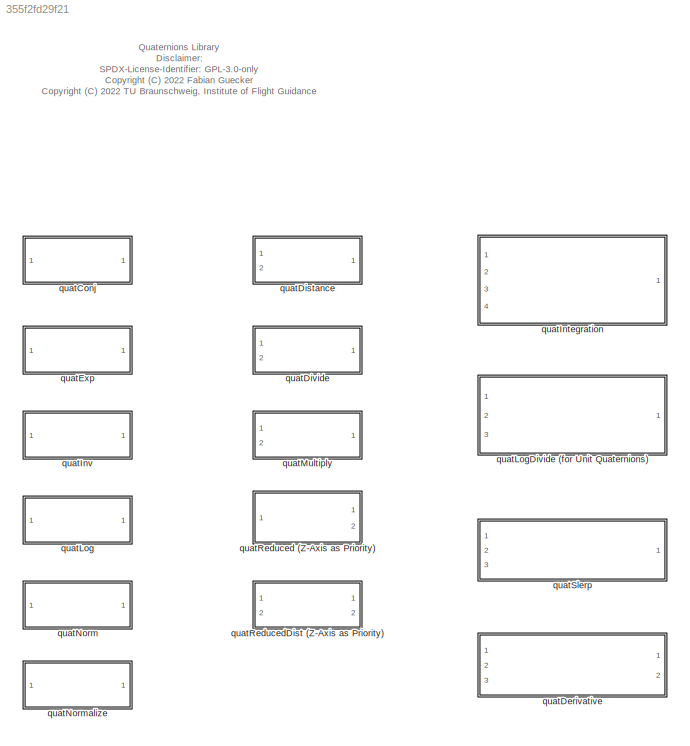
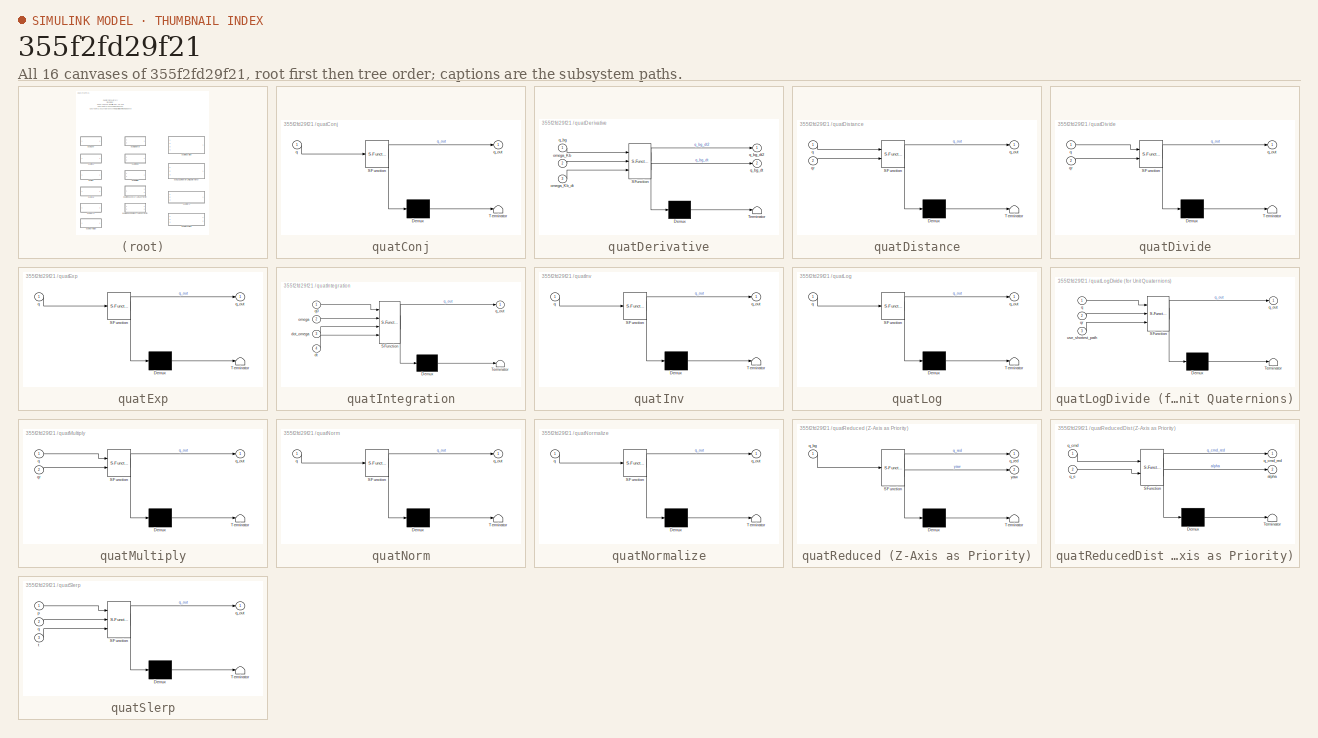
[diagram: thumbnail index - all 16 canvases of the model, root first then tree order]
MODEL slx_355f2fd29f21
KIND library
CONFIG AbsTol = auto
CONFIG EnableMultiTasking = off
CONFIG FixedStep = auto
CONFIG MaxStep = auto
CONFIG MinStep = auto
CONFIG RelTol = 1e-3
CONFIG SampleTimeConstraint = Unconstrained
CONFIG Solver = VariableStepAuto
CONFIG SolverName = VariableStepAuto
CONFIG StartTime = 0.0
CONFIG StopTime = 10.0
BLOCK [SubSystem] quatConj
  ErrorFcn = Stateflow.Translate.translate
  PermitHierarchicalResolution = ExplicitOnly
  Ports = [1, 1]
  RequestExecContextInheritance = off
  SFBlockType = MATLAB Function
  TreatAsAtomicUnit = on
BLOCK [Demux] quatConj/ Demux 
  Outputs = 1
  Ports = [1, 1]
BLOCK [S-Function] quatConj/ SFunction 
  EnableBusSupport = off
  FunctionName = sf_sfun
  PortCounts = [1 2]
  Ports = [1, 2]
  SFcnIsStateOwnerBlock = off
  SFunctionDeploymentMode = off
  Tag = Stateflow S-Function quat_lib 2
BLOCK [Terminator] quatConj/ Terminator 
BLOCK [Inport] quatConj/q
  IconDisplay = Port number
BLOCK [Outport] quatConj/q_out
  IconDisplay = Port number
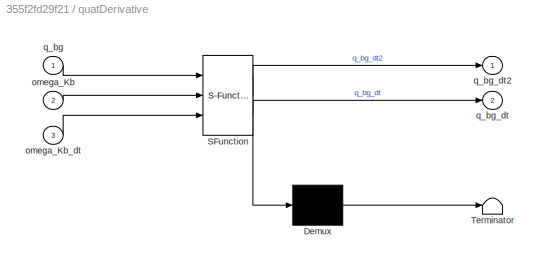
BLOCK [SubSystem] quatDerivative
  ErrorFcn = Stateflow.Translate.translate
  PermitHierarchicalResolution = ExplicitOnly
  Ports = [3, 2]
  RequestExecContextInheritance = off
  SFBlockType = MATLAB Function
  TreatAsAtomicUnit = on
BLOCK [Demux] quatDerivative/ Demux 
  Outputs = 1
  Ports = [1, 1]
BLOCK [S-Function] quatDerivative/ SFunction 
  EnableBusSupport = off
  FunctionName = sf_sfun
  PortCounts = [3 3]
  Ports = [3, 3]
  SFcnIsStateOwnerBlock = off
  SFunctionDeploymentMode = off
  Tag = Stateflow S-Function quat_lib 15
BLOCK [Terminator] quatDerivative/ Terminator 
BLOCK [Inport] quatDerivative/omega_Kb
  IconDisplay = Port number
  Port = 2
BLOCK [Inport] quatDerivative/omega_Kb_dt
  IconDisplay = Port number
  Port = 3
BLOCK [Inport] quatDerivative/q_bg
  IconDisplay = Port number
BLOCK [Outport] quatDerivative/q_bg_dt
  IconDisplay = Port number
  Port = 2
BLOCK [Outport] quatDerivative/q_bg_dt2
  IconDisplay = Port number
BLOCK [SubSystem] quatDistance
  ErrorFcn = Stateflow.Translate.translate
  PermitHierarchicalResolution = ExplicitOnly
  Ports = [2, 1]
  RequestExecContextInheritance = off
  SFBlockType = MATLAB Function
  TreatAsAtomicUnit = on
BLOCK [Demux] quatDistance/ Demux 
  Outputs = 1
  Ports = [1, 1]
BLOCK [S-Function] quatDistance/ SFunction 
  EnableBusSupport = off
  FunctionName = sf_sfun
  PortCounts = [2 2]
  Ports = [2, 2]
  SFcnIsStateOwnerBlock = off
  SFunctionDeploymentMode = off
  Tag = Stateflow S-Function quat_lib 1
BLOCK [Terminator] quatDistance/ Terminator 
BLOCK [Inport] quatDistance/q
  IconDisplay = Port number
BLOCK [Outport] quatDistance/q_out
  IconDisplay = Port number
BLOCK [Inport] quatDistance/qr
  IconDisplay = Port number
  Port = 2
BLOCK [SubSystem] quatDivide
  ErrorFcn = Stateflow.Translate.translate
  PermitHierarchicalResolution = ExplicitOnly
  Ports = [2, 1]
  RequestExecContextInheritance = off
  SFBlockType = MATLAB Function
  TreatAsAtomicUnit = on
BLOCK [Demux] quatDivide/ Demux 
  Outputs = 1
  Ports = [1, 1]
BLOCK [S-Function] quatDivide/ SFunction 
  EnableBusSupport = off
  FunctionName = sf_sfun
  PortCounts = [2 2]
  Ports = [2, 2]
  SFcnIsStateOwnerBlock = off
  SFunctionDeploymentMode = off
  Tag = Stateflow S-Function quat_lib 3
BLOCK [Terminator] quatDivide/ Terminator 
BLOCK [Inport] quatDivide/q
  IconDisplay = Port number
BLOCK [Outport] quatDivide/q_out
  IconDisplay = Port number
BLOCK [Inport] quatDivide/qr
  IconDisplay = Port number
  Port = 2
BLOCK [SubSystem] quatExp
  ErrorFcn = Stateflow.Translate.translate
  PermitHierarchicalResolution = ExplicitOnly
  Ports = [1, 1]
  RequestExecContextInheritance = off
  SFBlockType = MATLAB Function
  TreatAsAtomicUnit = on
BLOCK [Demux] quatExp/ Demux 
  Outputs = 1
  Ports = [1, 1]
BLOCK [S-Function] quatExp/ SFunction 
  EnableBusSupport = off
  FunctionName = sf_sfun
  PortCounts = [1 2]
  Ports = [1, 2]
  SFcnIsStateOwnerBlock = off
  SFunctionDeploymentMode = off
  Tag = Stateflow S-Function quat_lib 4
BLOCK [Terminator] quatExp/ Terminator 
BLOCK [Inport] quatExp/q
  IconDisplay = Port number
BLOCK [Outport] quatExp/q_out
  IconDisplay = Port number
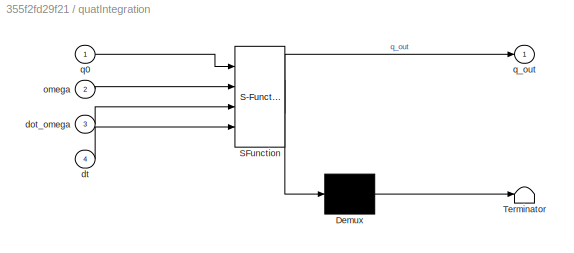
BLOCK [SubSystem] quatIntegration
  ErrorFcn = Stateflow.Translate.translate
  PermitHierarchicalResolution = ExplicitOnly
  Ports = [4, 1]
  RequestExecContextInheritance = off
  SFBlockType = MATLAB Function
  TreatAsAtomicUnit = on
BLOCK [Demux] quatIntegration/ Demux 
  Outputs = 1
  Ports = [1, 1]
BLOCK [S-Function] quatIntegration/ SFunction 
  EnableBusSupport = off
  FunctionName = sf_sfun
  PortCounts = [4 2]
  Ports = [4, 2]
  SFcnIsStateOwnerBlock = off
  SFunctionDeploymentMode = off
  Tag = Stateflow S-Function quat_lib 11
BLOCK [Terminator] quatIntegration/ Terminator 
BLOCK [Inport] quatIntegration/dot_omega
  IconDisplay = Port number
  Port = 3
BLOCK [Inport] quatIntegration/dt
  IconDisplay = Port number
  Port = 4
BLOCK [Inport] quatIntegration/omega
  IconDisplay = Port number
  Port = 2
BLOCK [Inport] quatIntegration/q0
  IconDisplay = Port number
BLOCK [Outport] quatIntegration/q_out
  IconDisplay = Port number
BLOCK [SubSystem] quatInv
  ErrorFcn = Stateflow.Translate.translate
  PermitHierarchicalResolution = ExplicitOnly
  Ports = [1, 1]
  RequestExecContextInheritance = off
  SFBlockType = MATLAB Function
  TreatAsAtomicUnit = on
BLOCK [Demux] quatInv/ Demux 
  Outputs = 1
  Ports = [1, 1]
BLOCK [S-Function] quatInv/ SFunction 
  EnableBusSupport = off
  FunctionName = sf_sfun
  PortCounts = [1 2]
  Ports = [1, 2]
  SFcnIsStateOwnerBlock = off
  SFunctionDeploymentMode = off
  Tag = Stateflow S-Function quat_lib 6
BLOCK [Terminator] quatInv/ Terminator 
BLOCK [Inport] quatInv/q
  IconDisplay = Port number
BLOCK [Outport] quatInv/q_out
  IconDisplay = Port number
BLOCK [SubSystem] quatLog
  ErrorFcn = Stateflow.Translate.translate
  PermitHierarchicalResolution = ExplicitOnly
  Ports = [1, 1]
  RequestExecContextInheritance = off
  SFBlockType = MATLAB Function
  TreatAsAtomicUnit = on
BLOCK [Demux] quatLog/ Demux 
  Outputs = 1
  Ports = [1, 1]
BLOCK [S-Function] quatLog/ SFunction 
  EnableBusSupport = off
  FunctionName = sf_sfun
  PortCounts = [1 2]
  Ports = [1, 2]
  SFcnIsStateOwnerBlock = off
  SFunctionDeploymentMode = off
  Tag = Stateflow S-Function quat_lib 5
BLOCK [Terminator] quatLog/ Terminator 
BLOCK [Inport] quatLog/q
  IconDisplay = Port number
BLOCK [Outport] quatLog/q_out
  IconDisplay = Port number
BLOCK [SubSystem] quatLogDivide (for Unit Quaternions)
  ErrorFcn = Stateflow.Translate.translate
  PermitHierarchicalResolution = ExplicitOnly
  Ports = [3, 1]
  RequestExecContextInheritance = off
  SFBlockType = MATLAB Function
  TreatAsAtomicUnit = on
BLOCK [Demux] quatLogDivide (for Unit Quaternions)/ Demux 
  Outputs = 1
  Ports = [1, 1]
BLOCK [S-Function] quatLogDivide (for Unit Quaternions)/ SFunction 
  EnableBusSupport = off
  FunctionName = sf_sfun
  PortCounts = [3 2]
  Ports = [3, 2]
  SFcnIsStateOwnerBlock = off
  SFunctionDeploymentMode = off
  Tag = Stateflow S-Function quat_lib 12
BLOCK [Terminator] quatLogDivide (for Unit Quaternions)/ Terminator 
BLOCK [Inport] quatLogDivide (for Unit Quaternions)/q
  IconDisplay = Port number
BLOCK [Outport] quatLogDivide (for Unit Quaternions)/q_out
  IconDisplay = Port number
BLOCK [Inport] quatLogDivide (for Unit Quaternions)/qr
  IconDisplay = Port number
  Port = 2
BLOCK [Inport] quatLogDivide (for Unit Quaternions)/use_shortest_path
  IconDisplay = Port number
  Port = 3
BLOCK [SubSystem] quatMultiply
  ErrorFcn = Stateflow.Translate.translate
  PermitHierarchicalResolution = ExplicitOnly
  Ports = [2, 1]
  RequestExecContextInheritance = off
  SFBlockType = MATLAB Function
  TreatAsAtomicUnit = on
BLOCK [Demux] quatMultiply/ Demux 
  Outputs = 1
  Ports = [1, 1]
BLOCK [S-Function] quatMultiply/ SFunction 
  EnableBusSupport = off
  FunctionName = sf_sfun
  PortCounts = [2 2]
  Ports = [2, 2]
  SFcnIsStateOwnerBlock = off
  SFunctionDeploymentMode = off
  Tag = Stateflow S-Function quat_lib 9
BLOCK [Terminator] quatMultiply/ Terminator 
BLOCK [Inport] quatMultiply/q
  IconDisplay = Port number
BLOCK [Outport] quatMultiply/q_out
  IconDisplay = Port number
BLOCK [Inport] quatMultiply/qr
  IconDisplay = Port number
  Port = 2
BLOCK [SubSystem] quatNorm
  ErrorFcn = Stateflow.Translate.translate
  PermitHierarchicalResolution = ExplicitOnly
  Ports = [1, 1]
  RequestExecContextInheritance = off
  SFBlockType = MATLAB Function
  TreatAsAtomicUnit = on
BLOCK [Demux] quatNorm/ Demux 
  Outputs = 1
  Ports = [1, 1]
BLOCK [S-Function] quatNorm/ SFunction 
  EnableBusSupport = off
  FunctionName = sf_sfun
  PortCounts = [1 2]
  Ports = [1, 2]
  SFcnIsStateOwnerBlock = off
  SFunctionDeploymentMode = off
  Tag = Stateflow S-Function quat_lib 7
BLOCK [Terminator] quatNorm/ Terminator 
BLOCK [Inport] quatNorm/q
  IconDisplay = Port number
BLOCK [Outport] quatNorm/q_out
  IconDisplay = Port number
BLOCK [SubSystem] quatNormalize
  ErrorFcn = Stateflow.Translate.translate
  PermitHierarchicalResolution = ExplicitOnly
  Ports = [1, 1]
  RequestExecContextInheritance = off
  SFBlockType = MATLAB Function
  TreatAsAtomicUnit = on
BLOCK [Demux] quatNormalize/ Demux 
  Outputs = 1
  Ports = [1, 1]
BLOCK [S-Function] quatNormalize/ SFunction 
  EnableBusSupport = off
  FunctionName = sf_sfun
  PortCounts = [1 2]
  Ports = [1, 2]
  SFcnIsStateOwnerBlock = off
  SFunctionDeploymentMode = off
  Tag = Stateflow S-Function quat_lib 8
BLOCK [Terminator] quatNormalize/ Terminator 
BLOCK [Inport] quatNormalize/q
  IconDisplay = Port number
BLOCK [Outport] quatNormalize/q_out
  IconDisplay = Port number
BLOCK [SubSystem] quatReduced (Z-Axis as Priority)
  ErrorFcn = Stateflow.Translate.translate
  PermitHierarchicalResolution = ExplicitOnly
  Ports = [1, 2]
  RequestExecContextInheritance = off
  SFBlockType = MATLAB Function
  TreatAsAtomicUnit = on
BLOCK [Demux] quatReduced (Z-Axis as Priority)/ Demux 
  Outputs = 1
  Ports = [1, 1]
BLOCK [S-Function] quatReduced (Z-Axis as Priority)/ SFunction 
  EnableBusSupport = off
  FunctionName = sf_sfun
  PortCounts = [1 3]
  Ports = [1, 3]
  SFcnIsStateOwnerBlock = off
  SFunctionDeploymentMode = off
  Tag = Stateflow S-Function quat_lib 13
BLOCK [Terminator] quatReduced (Z-Axis as Priority)/ Terminator 
BLOCK [Inport] quatReduced (Z-Axis as Priority)/q_bg
  IconDisplay = Port number
BLOCK [Outport] quatReduced (Z-Axis as Priority)/q_red
  IconDisplay = Port number
BLOCK [Outport] quatReduced (Z-Axis as Priority)/yaw
  IconDisplay = Port number
  Port = 2
BLOCK [SubSystem] quatReducedDist (Z-Axis as Priority)
  ErrorFcn = Stateflow.Translate.translate
  PermitHierarchicalResolution = ExplicitOnly
  Ports = [2, 2]
  RequestExecContextInheritance = off
  SFBlockType = MATLAB Function
  TreatAsAtomicUnit = on
BLOCK [Demux] quatReducedDist (Z-Axis as Priority)/ Demux 
  Outputs = 1
  Ports = [1, 1]
BLOCK [S-Function] quatReducedDist (Z-Axis as Priority)/ SFunction 
  EnableBusSupport = off
  FunctionName = sf_sfun
  PortCounts = [2 3]
  Ports = [2, 3]
  SFcnIsStateOwnerBlock = off
  SFunctionDeploymentMode = off
  Tag = Stateflow S-Function quat_lib 10
BLOCK [Terminator] quatReducedDist (Z-Axis as Priority)/ Terminator 
BLOCK [Outport] quatReducedDist (Z-Axis as Priority)/alpha
  IconDisplay = Port number
  Port = 2
BLOCK [Inport] quatReducedDist (Z-Axis as Priority)/q_cmd
  IconDisplay = Port number
BLOCK [Outport] quatReducedDist (Z-Axis as Priority)/q_cmd_red
  IconDisplay = Port number
BLOCK [Inport] quatReducedDist (Z-Axis as Priority)/q_e
  IconDisplay = Port number
  Port = 2
BLOCK [SubSystem] quatSlerp
  ErrorFcn = Stateflow.Translate.translate
  PermitHierarchicalResolution = ExplicitOnly
  Ports = [3, 1]
  RequestExecContextInheritance = off
  SFBlockType = MATLAB Function
  TreatAsAtomicUnit = on
BLOCK [Demux] quatSlerp/ Demux 
  Outputs = 1
  Ports = [1, 1]
BLOCK [S-Function] quatSlerp/ SFunction 
  EnableBusSupport = off
  FunctionName = sf_sfun
  PortCounts = [3 2]
  Ports = [3, 2]
  SFcnIsStateOwnerBlock = off
  SFunctionDeploymentMode = off
  Tag = Stateflow S-Function quat_lib 14
BLOCK [Terminator] quatSlerp/ Terminator 
BLOCK [Inport] quatSlerp/p
  IconDisplay = Port number
BLOCK [Inport] quatSlerp/q
  IconDisplay = Port number
  Port = 2
BLOCK [Outport] quatSlerp/q_out
  IconDisplay = Port number
BLOCK [Inport] quatSlerp/t
  IconDisplay = Port number
  Port = 3
ANNOTATION (root): Quaternions Library Disclaimer: SPDX-License-Identifier: GPL-3.0-only <copyright redacted>
CHART quatDistance states=1 transitions=1
  STATE_LABEL 'eML_blk_kernel()'
  STATE_LABEL 'SCRIPT:\nfunction q_out = quatDistance(q, qr)\n\nq_out = quatDistance(q, qr);\n\nend\n'
CHART quatConj states=1 transitions=1
  STATE_LABEL 'eML_blk_kernel()'
  STATE_LABEL 'SCRIPT:\nfunction q_out = quatConj( q )\n\nq_out = quatConj( q );\n\nend\n'
CHART quatDivide states=1 transitions=1
  STATE_LABEL 'eML_blk_kernel()'
  STATE_LABEL 'SCRIPT:\nfunction q_out = quatDivide(q, qr)\n\nq_out = quatDivide(q, qr);\n\nend\n'
CHART quatExp states=1 transitions=1
  STATE_LABEL 'eML_blk_kernel()'
  STATE_LABEL 'SCRIPT:\nfunction q_out = quatExp( q )\n\nq_out = quatExp( q );\n\nend\n'
CHART quatLog states=1 transitions=1
  STATE_LABEL 'eML_blk_kernel()'
  STATE_LABEL 'SCRIPT:\nfunction q_out = quatLog( q )\n\nq_out = quatLog( q );\n\nend\n'
CHART quatInv states=1 transitions=1
  STATE_LABEL 'eML_blk_kernel()'
  STATE_LABEL 'SCRIPT:\nfunction q_out = quatInv( q )\n\nq_out = quatInv( q );\n\nend\n'
CHART quatNorm states=1 transitions=1
  STATE_LABEL 'eML_blk_kernel()'
  STATE_LABEL 'SCRIPT:\nfunction q_out = quatNorm( q )\n\nq_out = quatNorm( q );\n\nend\n'
CHART quatNormalize states=1 transitions=1
  STATE_LABEL 'eML_blk_kernel()'
  STATE_LABEL 'SCRIPT:\nfunction q_out = quatNormalize( q )\n\nq_out = quatNormalize( q );\n\nend\n'
CHART quatMultiply states=1 transitions=1
  STATE_LABEL 'eML_blk_kernel()'
  STATE_LABEL 'SCRIPT:\nfunction q_out = quatMultiply(q, qr)\n\nq_out = quatMultiply(q, qr);\n\nend\n'
CHART quatReducedDist (Z-Axis as Priority) states=1 transitions=1
  STATE_LABEL 'eML_blk_kernel()'
  STATE_LABEL 'SCRIPT:\nfunction [q_cmd_red, alpha] = quatReducedDist(q_cmd, q_e)\n\n[q_cmd_red, alpha] = quatReducedDist(q_cmd, q_e);\n\nend'
CHART quatIntegration states=1 transitions=1
  STATE_LABEL 'eML_blk_kernel()'
  STATE_LABEL 'SCRIPT:\nfunction q_out = quatIntegration(q0, omega, dot_omega, dt)\n\nq_out = quatIntegration(q0, omega, dot_omega, dt);\n\nend\n'
CHART quatLogDivide (for Unit Quaternions) states=1 transitions=1
  STATE_LABEL 'eML_blk_kernel()'
  STATE_LABEL 'SCRIPT:\nfunction q_out = quatLogDivide(q, qr, use_shortest_path)\n\nq_out = quatLogDivide(q, qr, use_shortest_path);\n\nend\n'
CHART quatReduced (Z-Axis as Priority) states=1 transitions=1
  STATE_LABEL 'eML_blk_kernel()'
  STATE_LABEL 'SCRIPT:\nfunction [q_red,yaw] = quatReduced(q_bg)\n\n[q_red,yaw] = quatReduced(q_bg);\n\nend\n'
CHART quatSlerp states=1 transitions=1
  STATE_LABEL 'eML_blk_kernel()'
  STATE_LABEL 'SCRIPT:\nfunction q_out  = quatSlerp(p, q, t)\n\n[q_out] = quatSlerp(p, q, t);\n\nend\n'
CHART quatDerivative states=1 transitions=1
  STATE_LABEL 'eML_blk_kernel()'
  STATE_LABEL 'SCRIPT:\nfunction [q_bg_dt2,q_bg_dt] = quatDerivative( q_bg, omega_Kb, omega_Kb_dt )\n\n[q_bg_dt2,q_bg_dt] = quatDerivative( q_bg, omega_Kb, omega_Kb_dt );\n\nend\n'
